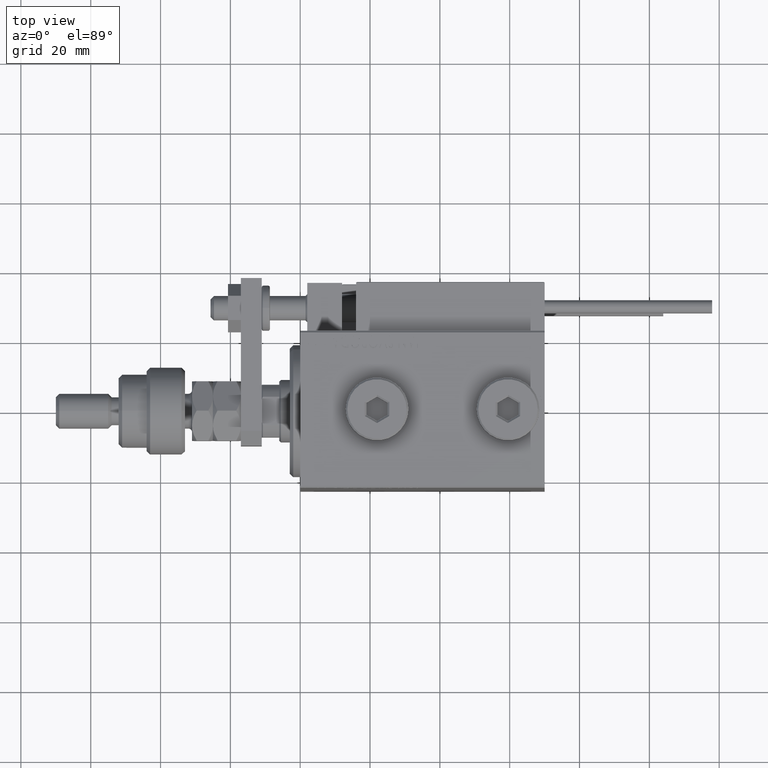
[diagram: clean part render]
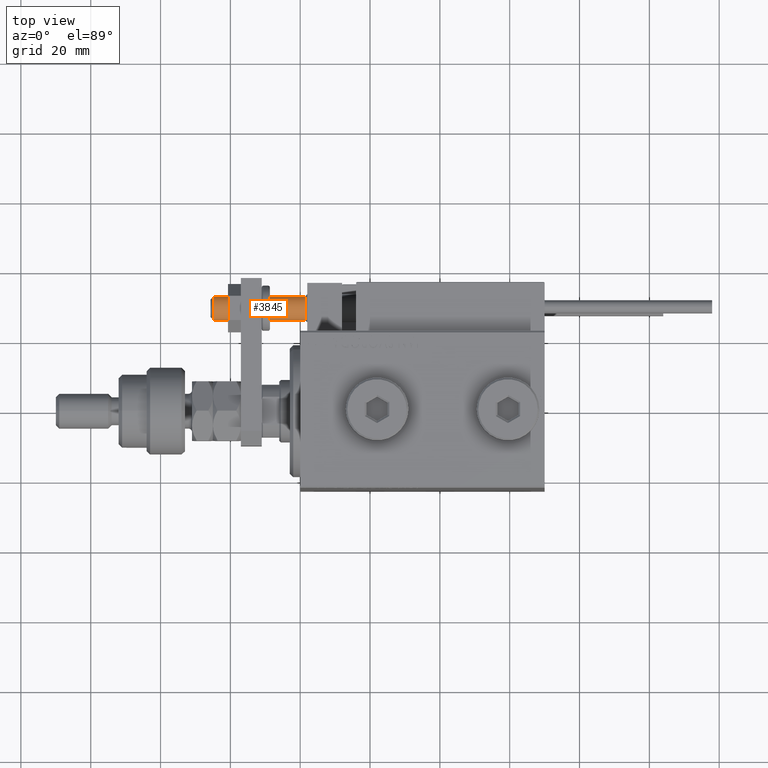
[diagram: same view with one face highlighted and labeled with its STEP entity id]
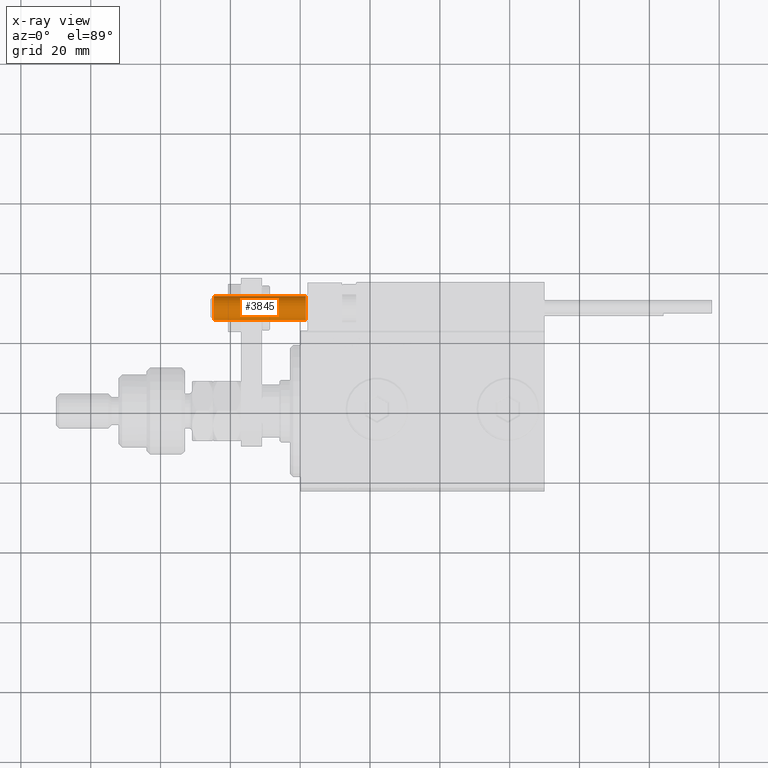
[diagram: x-ray of the same camera — body ghosted, the highlighted face saturated]
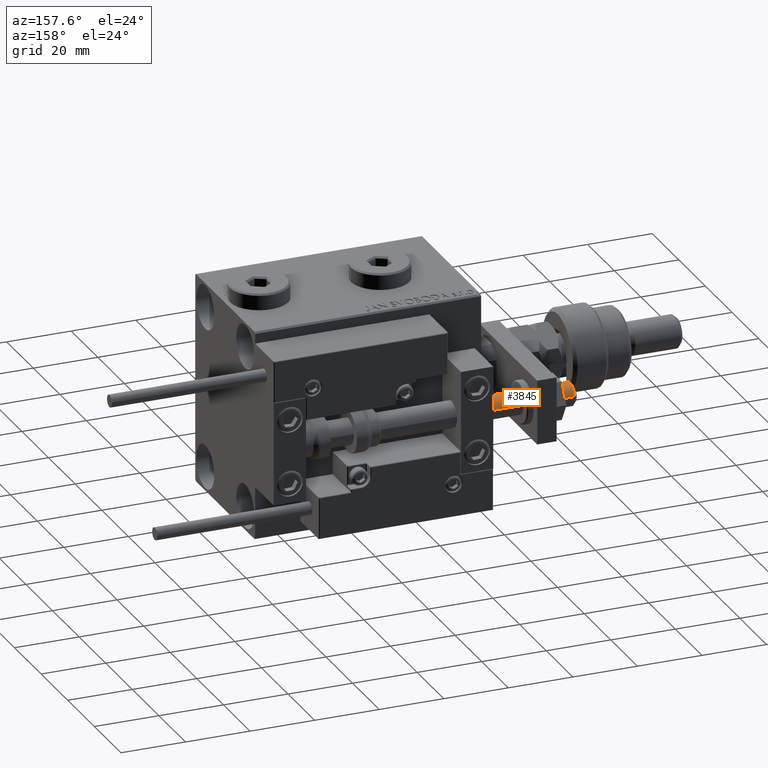
[diagram: same view with one face highlighted and labeled with its STEP entity id]
A machine part, top view. The second image highlights one B-rep face of the part: STEP entity #3845.
The next image is the same camera in x-ray: the body ghosted, the highlighted face saturated — about 0% of this face is hidden behind the body in this view.
A second angle (auxiliary view) of the same face is appended — the face is thin or edge-on in the first view.
In plain terms, the highlighted cylindrical surface (edge-blend (fillet) strip) has radius 3.5 mm, axis along (1, -0, -0).
Its self-contained STEP definition (entity closure, byte-faithful):
#1115 = CARTESIAN_POINT ( 'NONE',  ( -3.500000000000000000, 4.286263797015735609E-16, -25.69999999999999929 ) ) ;
#3453 = CARTESIAN_POINT ( 'NONE',  ( 0.000000000000000000, 0.000000000000000000, -24.70000000000005969 ) ) ;
#3673 = VERTEX_POINT ( 'NONE', #17015 ) ;
#3845 = ADVANCED_FACE ( 'NONE', ( #32824 ), #49594, .T. ) ;
#6037 = CARTESIAN_POINT ( 'NONE',  ( 0.000000000000000000, 0.000000000000000000, 1.500000000000025535 ) ) ;
#6564 = AXIS2_PLACEMENT_3D ( 'NONE', #17154, #16337, #41883 ) ;
#7571 = DIRECTION ( 'NONE',  ( -1.000000000000000000, 0.000000000000000000, 0.000000000000000000 ) ) ;
#8437 = ORIENTED_EDGE ( 'NONE', *, *, #17072, .T. ) ;
#10564 = VECTOR ( 'NONE', #37952, 1000.000000000000000 ) ;
#10605 = DIRECTION ( 'NONE',  ( -0.000000000000000000, -0.000000000000000000, 1.000000000000000000 ) ) ;
#14410 = VERTEX_POINT ( 'NONE', #46633 ) ;
#15541 = LINE ( 'NONE', #39483, #44036 ) ;
#16047 = CIRCLE ( 'NONE', #37124, 3.500000000000000000 ) ;
#16337 = DIRECTION ( 'NONE',  ( -0.000000000000000000, -0.000000000000000000, 1.000000000000000000 ) ) ;
#17015 = CARTESIAN_POINT ( 'NONE',  ( -3.500000000000000000, 4.286263797015735609E-16, -24.70000000000005969 ) ) ;
#17072 = EDGE_CURVE ( 'NONE', #14410, #3673, #16047, .T. ) ;
#17154 = CARTESIAN_POINT ( 'NONE',  ( 0.000000000000000000, 0.000000000000000000, -25.69999999999999929 ) ) ;
#18987 = ORIENTED_EDGE ( 'NONE', *, *, #41489, .T. ) ;
#25309 = LINE ( 'NONE', #1115, #10564 ) ;
#27042 = CIRCLE ( 'NONE', #52501, 3.500000000000000000 ) ;
#27757 = VERTEX_POINT ( 'NONE', #53977 ) ;
#30523 = DIRECTION ( 'NONE',  ( 1.000000000000000000, 0.000000000000000000, 0.000000000000000000 ) ) ;
#32824 = FACE_OUTER_BOUND ( 'NONE', #50685, .T. ) ;
#33032 = ORIENTED_EDGE ( 'NONE', *, *, #36730, .T. ) ;
#36730 = EDGE_CURVE ( 'NONE', #3673, #27757, #25309, .T. ) ;
#37124 = AXIS2_PLACEMENT_3D ( 'NONE', #3453, #45223, #7571 ) ;
#37952 = DIRECTION ( 'NONE',  ( -0.000000000000000000, -0.000000000000000000, 1.000000000000000000 ) ) ;
#39483 = CARTESIAN_POINT ( 'NONE',  ( 3.500000000000000000, 0.000000000000000000, -25.69999999999999929 ) ) ;
#40324 = CARTESIAN_POINT ( 'NONE',  ( 3.500000000000000000, 0.000000000000000000, 1.500000000000025535 ) ) ;
#41489 = EDGE_CURVE ( 'NONE', #27757, #48220, #27042, .T. ) ;
#41883 = DIRECTION ( 'NONE',  ( 1.000000000000000000, 0.000000000000000000, 0.000000000000000000 ) ) ;
#41965 = ORIENTED_EDGE ( 'NONE', *, *, #53406, .F. ) ;
#44036 = VECTOR ( 'NONE', #10605, 1000.000000000000000 ) ;
#45223 = DIRECTION ( 'NONE',  ( 0.000000000000000000, 0.000000000000000000, 1.000000000000000000 ) ) ;
#46633 = CARTESIAN_POINT ( 'NONE',  ( 3.500000000000000000, 0.000000000000000000, -24.70000000000005969 ) ) ;
#48075 = DIRECTION ( 'NONE',  ( 0.000000000000000000, 0.000000000000000000, -1.000000000000000000 ) ) ;
#48220 = VERTEX_POINT ( 'NONE', #40324 ) ;
#49594 = CYLINDRICAL_SURFACE ( 'NONE', #6564, 3.500000000000000000 ) ;
#50685 = EDGE_LOOP ( 'NONE', ( #8437, #33032, #18987, #41965 ) ) ;
#52501 = AXIS2_PLACEMENT_3D ( 'NONE', #6037, #48075, #30523 ) ;
#53406 = EDGE_CURVE ( 'NONE', #14410, #48220, #15541, .T. ) ;
#53977 = CARTESIAN_POINT ( 'NONE',  ( -3.500000000000000000, 4.286263797015735609E-16, 1.500000000000025535 ) ) ;